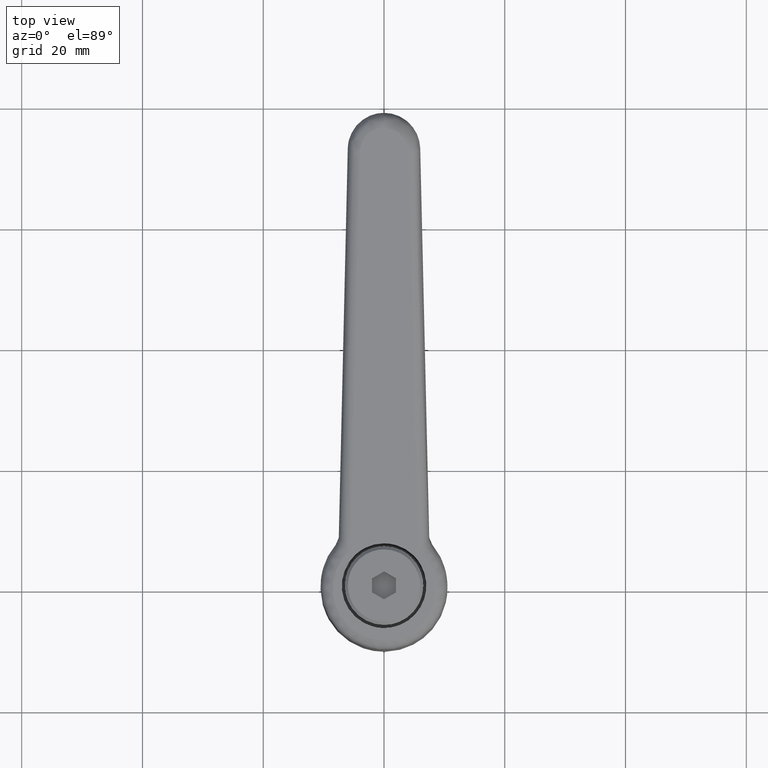
[diagram: clean part render]
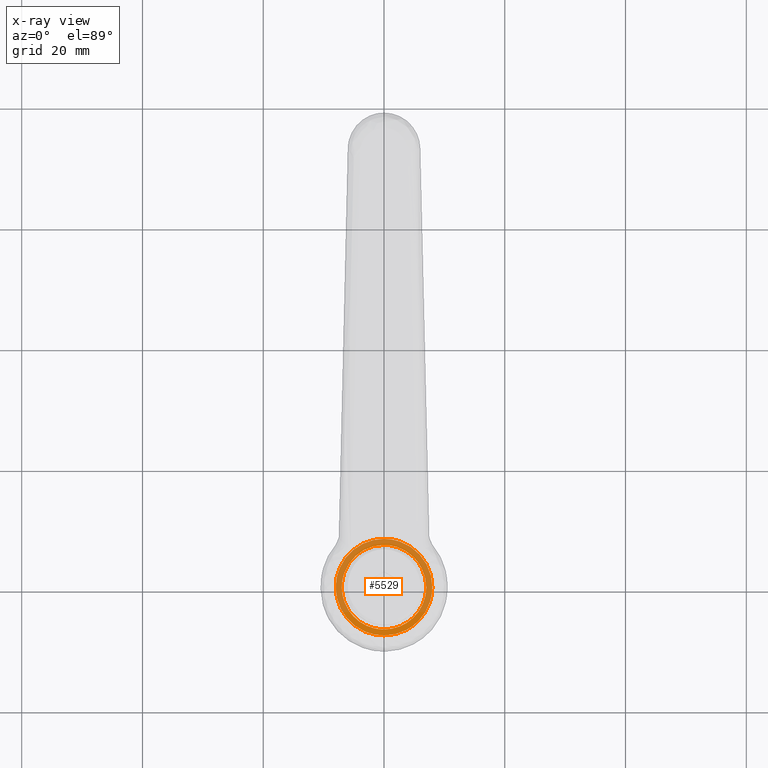
[diagram: x-ray — body ghosted, one internal face saturated and labeled with its STEP entity id]
A machine part, top view, then the same camera in x-ray: the body is ghosted and one INTERNAL B-rep face — a face not visible from any outside direction — is saturated and labeled: STEP entity #5529.
In plain terms, the highlighted face is a freeform B-spline surface patch.
Its self-contained STEP definition (entity closure, byte-faithful):
#1767=CARTESIAN_POINT('',(-8.0,0.0,12.000000000000220));
#1768=VERTEX_POINT('',#1767);
#1769=CARTESIAN_POINT('',(-5.579455831524071,-5.733207608983713,11.999999999999870));
#1770=VERTEX_POINT('',#1769);
#1771=CARTESIAN_POINT('',(-8.0,0.0,12.000000000000220));
#1772=CARTESIAN_POINT('',(-8.000038294050135,-0.499364924097891,12.000000000000210));
#1773=CARTESIAN_POINT('',(-7.896875407120144,-1.597986841997598,12.000000000000099));
#1774=CARTESIAN_POINT('',(-7.461797455335034,-3.006356144179406,12.000000000000060));
#1775=CARTESIAN_POINT('',(-6.705773392804059,-4.456239483874402,11.999999999999920));
#1776=CARTESIAN_POINT('',(-6.056747532358851,-5.268944074514073,11.999999999999931));
#1777=CARTESIAN_POINT('',(-5.579455831524071,-5.733207608983713,11.999999999999870));
#1778=B_SPLINE_CURVE_WITH_KNOTS('',3,(#1771,#1772,#1773,#1774,#1775,#1776,#1777),.UNSPECIFIED.,.F.,.U.,(4,1,1,1,4),(0.000000016648449,1.498112647784820,3.295840583785803,4.394459808361082,6.391949009087064),.UNSPECIFIED.);
#1779=EDGE_CURVE('',#1768,#1770,#1778,.T.);
#1846=CARTESIAN_POINT('',(5.404721806673198,-5.898218825887525,12.000000000001480));
#1847=VERTEX_POINT('',#1846);
#1853=CARTESIAN_POINT('',(8.0,0.0,12.000000000000220));
#1854=VERTEX_POINT('',#1853);
#1855=CARTESIAN_POINT('',(5.404721806673198,-5.898218825887525,12.000000000001480));
#1856=CARTESIAN_POINT('',(5.684874698571047,-5.641522836214929,12.000000000001419));
#1857=CARTESIAN_POINT('',(6.279932948827026,-5.012656526635885,12.000000000001290));
#1858=CARTESIAN_POINT('',(7.078106855831418,-3.835688766680744,12.000000000001039));
#1859=CARTESIAN_POINT('',(7.797585009293703,-2.141473003857376,12.000000000000680));
#1860=CARTESIAN_POINT('',(8.000365245525710,-0.794536024590619,12.000000000000391));
#1861=CARTESIAN_POINT('',(8.0,0.0,12.000000000000220));
#1862=B_SPLINE_CURVE_WITH_KNOTS('',3,(#1855,#1856,#1857,#1858,#1859,#1860,#1861),.UNSPECIFIED.,.F.,.U.,(4,1,1,1,4),(0.000000015297609,1.139925666537495,2.590752211359732,4.248810433934379,6.632297586359256),.UNSPECIFIED.);
#1863=EDGE_CURVE('',#1847,#1854,#1862,.T.);
#1865=CARTESIAN_POINT('',(-0.000000784380531,7.999999999999962,12.000000000000220));
#1866=VERTEX_POINT('',#1865);
#1867=CARTESIAN_POINT('',(8.0,0.0,12.000000000000220));
#1868=CARTESIAN_POINT('',(8.000456141399610,0.818188724077737,12.000000000000220));
#1869=CARTESIAN_POINT('',(7.792228387452179,2.159590581339938,12.000000000000171));
#1870=CARTESIAN_POINT('',(7.002001494480390,4.003306223004828,12.000000000000330));
#1871=CARTESIAN_POINT('',(6.055567153267292,5.312659877113576,11.999999999999909));
#1872=CARTESIAN_POINT('',(4.966948329707169,6.311376114383624,12.000000000000600));
#1873=CARTESIAN_POINT('',(3.875628690221512,7.040618302973636,11.999999999999851));
#1874=CARTESIAN_POINT('',(2.767025327110055,7.540178318879596,12.000000000000250));
#1875=CARTESIAN_POINT('',(1.439855467155971,7.907436487695333,12.000000000000419));
#1876=CARTESIAN_POINT('',(0.556326760398553,8.000094462314205,12.000000000000121));
#1877=CARTESIAN_POINT('',(-0.000000784380531,7.999999999999962,12.000000000000220));
#1878=B_SPLINE_CURVE_WITH_KNOTS('',3,(#1867,#1868,#1869,#1870,#1871,#1872,#1873,#1874,#1875,#1876,#1877),.UNSPECIFIED.,.F.,.U.,(4,1,1,1,1,1,1,1,4),(0.000000056841380,2.454377084693446,4.025192400525658,5.988730720664633,7.264956511762519,8.443083046219670,9.915719206550289,10.897483354120981,12.566449905094730),.UNSPECIFIED.);
#1879=EDGE_CURVE('',#1854,#1866,#1878,.T.);
#1881=CARTESIAN_POINT('',(-0.000000784380531,7.999999999999962,12.000000000000220));
#1882=CARTESIAN_POINT('',(-0.687249834865294,8.000223130202107,12.000000000000250));
#1883=CARTESIAN_POINT('',(-1.799769816326342,7.855673970960729,12.000000000000201));
#1884=CARTESIAN_POINT('',(-3.348666550052020,7.312188910984878,12.000000000000259));
#1885=CARTESIAN_POINT('',(-4.550336799997957,6.631461756013027,12.000000000000171));
#1886=CARTESIAN_POINT('',(-5.484507460835427,5.855080907492400,12.000000000000320));
#1887=CARTESIAN_POINT('',(-6.264996829003098,5.014917732457398,12.000000000000099));
#1888=CARTESIAN_POINT('',(-6.870201223765049,4.155595693938912,12.000000000000380));
#1889=CARTESIAN_POINT('',(-7.459888051053579,2.984156075543399,12.000000000000060));
#1890=CARTESIAN_POINT('',(-7.886903592256843,1.636218347117928,12.000000000000270));
#1891=CARTESIAN_POINT('',(-8.000086010149186,0.556325180494992,12.000000000000220));
#1892=CARTESIAN_POINT('',(-8.0,0.0,12.000000000000220));
#1893=B_SPLINE_CURVE_WITH_KNOTS('',3,(#1881,#1882,#1883,#1884,#1885,#1886,#1887,#1888,#1889,#1890,#1891,#1892),.UNSPECIFIED.,.F.,.U.,(4,1,1,1,1,1,1,1,1,4),(0.000000057114159,2.061679547334760,3.337963853514612,4.908785850372819,6.185064274311347,6.970438705159192,8.344900218698514,9.326660070587494,10.897482587484310,12.566449020909520),.UNSPECIFIED.);
#1894=EDGE_CURVE('',#1866,#1768,#1893,.T.);
#1913=CARTESIAN_POINT('',(0.000000784380527,-7.999999999999963,12.000000000000220));
#1914=VERTEX_POINT('',#1913);
#1915=CARTESIAN_POINT('',(-5.579455831524071,-5.733207608983713,11.999999999999870));
#1916=CARTESIAN_POINT('',(-5.233789167164884,-6.069672515291050,11.999999999999890));
#1917=CARTESIAN_POINT('',(-4.606723237782642,-6.578044569442261,11.999999999999950));
#1918=CARTESIAN_POINT('',(-3.411914369650871,-7.279209136006876,12.000000000000011));
#1919=CARTESIAN_POINT('',(-1.929438773559462,-7.840209349704623,12.000000000000130));
#1920=CARTESIAN_POINT('',(-0.675354617959714,-8.000200205647305,12.000000000000130));
#1921=CARTESIAN_POINT('',(0.000000784380527,-7.999999999999963,12.000000000000220));
#1922=B_SPLINE_CURVE_WITH_KNOTS('',3,(#1915,#1916,#1917,#1918,#1919,#1920,#1921),.UNSPECIFIED.,.F.,.U.,(4,1,1,1,4),(0.000000017543146,1.447147462044410,2.411917852202182,4.148487986417696,6.174501155075965),.UNSPECIFIED.);
#1923=EDGE_CURVE('',#1770,#1914,#1922,.T.);
#1925=CARTESIAN_POINT('',(0.000000784380527,-7.999999999999963,12.000000000000220));
#1926=CARTESIAN_POINT('',(0.649062966525574,-8.000169912699489,12.000000000000380));
#1927=CARTESIAN_POINT('',(1.730711873106272,-7.867590696721737,12.000000000000631));
#1928=CARTESIAN_POINT('',(3.112046318767362,-7.402860393266307,12.000000000000901));
#1929=CARTESIAN_POINT('',(4.296655559224701,-6.793351141034488,12.000000000001281));
#1930=CARTESIAN_POINT('',(5.017384659453767,-6.253238380749359,12.000000000001330));
#1931=CARTESIAN_POINT('',(5.404721806673198,-5.898218825887525,12.000000000001480));
#1932=B_SPLINE_CURVE_WITH_KNOTS('',3,(#1925,#1926,#1927,#1928,#1929,#1930,#1931),.UNSPECIFIED.,.F.,.U.,(4,1,1,1,4),(0.000000017500638,1.947144902354734,3.245224293607119,4.357892313899134,5.934151975565113),.UNSPECIFIED.);
#1933=EDGE_CURVE('',#1914,#1847,#1932,.T.);
#1988=CARTESIAN_POINT('',(0.000001716535586,-6.999999999999790,12.000000000000220));
#1989=VERTEX_POINT('',#1988);
#1990=CARTESIAN_POINT('',(5.016557112997631,-4.882024245913588,12.000000000000220));
#1991=VERTEX_POINT('',#1990);
#1992=CARTESIAN_POINT('',(0.000001716535586,-6.999999999999790,12.000000000000220));
#1993=CARTESIAN_POINT('',(0.495205732281507,-7.000055646549098,12.000000000000201));
#1994=CARTESIAN_POINT('',(1.573020424618916,-6.885246517353270,12.000000000000250));
#1995=CARTESIAN_POINT('',(2.875145601748403,-6.428946882155213,12.000000000000220));
#1996=CARTESIAN_POINT('',(4.062592254420448,-5.742062210159425,12.000000000000201));
#1997=CARTESIAN_POINT('',(4.671234474791709,-5.236974720394990,12.000000000000270));
#1998=CARTESIAN_POINT('',(5.016557112997631,-4.882024245913588,12.000000000000220));
#1999=B_SPLINE_CURVE_WITH_KNOTS('',3,(#1992,#1993,#1994,#1995,#1996,#1997,#1998),.UNSPECIFIED.,.F.,.U.,(4,1,1,1,4),(0.000000022131416,1.485629008453379,3.233422516662242,4.107324955489085,5.592953941825610),.UNSPECIFIED.);
#2000=EDGE_CURVE('',#1989,#1991,#1999,.T.);
#2002=CARTESIAN_POINT('',(-7.0,0.0,12.000000000000220));
#2003=VERTEX_POINT('',#2002);
#2004=CARTESIAN_POINT('',(-7.0,0.0,12.000000000000220));
#2005=CARTESIAN_POINT('',(-7.000356646552611,-0.715908951598757,12.000000000000250));
#2006=CARTESIAN_POINT('',(-6.827127552720273,-1.832401271477167,12.000000000000210));
#2007=CARTESIAN_POINT('',(-6.222126218245994,-3.292790395803473,12.000000000000220));
#2008=CARTESIAN_POINT('',(-5.469037366553727,-4.450478021033949,12.000000000000250));
#2009=CARTESIAN_POINT('',(-4.511581681128077,-5.407898300501994,12.000000000000220));
#2010=CARTESIAN_POINT('',(-3.298499024415398,-6.229338011508722,12.000000000000201));
#2011=CARTESIAN_POINT('',(-1.832508498128419,-6.836539418168641,12.000000000000140));
#2012=CARTESIAN_POINT('',(-0.629970718892048,-7.000215488683311,12.000000000000441));
#2013=CARTESIAN_POINT('',(0.000001716535586,-6.999999999999790,12.000000000000220));
#2014=B_SPLINE_CURVE_WITH_KNOTS('',3,(#2004,#2005,#2006,#2007,#2008,#2009,#2010,#2011,#2012,#2013),.UNSPECIFIED.,.F.,.U.,(4,1,1,1,1,1,1,4),(0.000000078865838,2.147584104591562,3.350236767929047,4.724715472764449,6.270929540498358,7.387685991383012,9.105780416524826,10.995644247601950),.UNSPECIFIED.);
#2015=EDGE_CURVE('',#2003,#1989,#2014,.T.);
#2017=CARTESIAN_POINT('',(-0.000001716535529,6.999999999999790,12.000000000000220));
#2018=VERTEX_POINT('',#2017);
#2019=CARTESIAN_POINT('',(-0.000001716535529,6.999999999999790,12.000000000000220));
#2020=CARTESIAN_POINT('',(-0.400878049195485,7.000027802351900,12.000000000000220));
#2021=CARTESIAN_POINT('',(-1.231261538560243,6.928477801925277,12.000000000000229));
#2022=CARTESIAN_POINT('',(-2.563821394191982,6.568614672134449,12.000000000000210));
#2023=CARTESIAN_POINT('',(-3.719007540035608,5.978213277286157,12.000000000000250));
#2024=CARTESIAN_POINT('',(-4.719213030182346,5.207349476943970,12.000000000000171));
#2025=CARTESIAN_POINT('',(-5.571428640129068,4.312367397325152,12.000000000000171));
#2026=CARTESIAN_POINT('',(-6.264998285773221,3.217093074260711,12.000000000000320));
#2027=CARTESIAN_POINT('',(-6.842648569021477,1.746521255399813,12.000000000000210));
#2028=CARTESIAN_POINT('',(-7.000302973712993,0.687267401977003,12.000000000000140));
#2029=CARTESIAN_POINT('',(-7.0,0.0,12.000000000000220));
#2030=B_SPLINE_CURVE_WITH_KNOTS('',3,(#2019,#2020,#2021,#2022,#2023,#2024,#2025,#2026,#2027,#2028,#2029),.UNSPECIFIED.,.F.,.U.,(4,1,1,1,1,1,1,1,4),(0.000000079469359,1.202634062052759,2.491199329014197,4.123373646597813,5.068313178614756,6.270928435942497,7.817207888681754,8.933966060897767,10.995642312654150),.UNSPECIFIED.);
#2031=EDGE_CURVE('',#2018,#2003,#2030,.T.);
#2033=CARTESIAN_POINT('',(5.160940994417302,4.729131216949925,12.000000000000220));
#2034=VERTEX_POINT('',#2033);
#2035=CARTESIAN_POINT('',(5.160940994417302,4.729131216949925,12.000000000000220));
#2036=CARTESIAN_POINT('',(4.773064751767450,5.152647591766010,12.000000000000229));
#2037=CARTESIAN_POINT('',(4.054478023148488,5.764937582371358,12.000000000000220));
#2038=CARTESIAN_POINT('',(2.913687929517907,6.395815834181065,12.000000000000240));
#2039=CARTESIAN_POINT('',(1.632054441468114,6.863394257140012,12.000000000000229));
#2040=CARTESIAN_POINT('',(0.634749479353782,7.000191089458419,12.000000000000201));
#2041=CARTESIAN_POINT('',(-0.000001716535529,6.999999999999790,12.000000000000220));
#2042=B_SPLINE_CURVE_WITH_KNOTS('',3,(#2035,#2036,#2037,#2038,#2039,#2040,#2041),.UNSPECIFIED.,.F.,.U.,(4,1,1,1,4),(0.000000021859086,1.722843780858989,2.810965315366169,3.899061097958895,5.803261801770796),.UNSPECIFIED.);
#2043=EDGE_CURVE('',#2034,#2018,#2042,.T.);
#2108=CARTESIAN_POINT('',(7.0,0.0,12.000000000000220));
#2109=VERTEX_POINT('',#2108);
#2110=CARTESIAN_POINT('',(5.016557112997631,-4.882024245913588,12.000000000000220));
#2111=CARTESIAN_POINT('',(5.369879791406532,-4.519100497300620,12.000000000000210));
#2112=CARTESIAN_POINT('',(5.875134147029889,-3.872197007351234,12.000000000000220));
#2113=CARTESIAN_POINT('',(6.483872060894125,-2.726642088063231,12.000000000000220));
#2114=CARTESIAN_POINT('',(6.892641534005442,-1.491327006238457,12.000000000000281));
#2115=CARTESIAN_POINT('',(7.000087503605501,-0.506506011544517,12.000000000000099));
#2116=CARTESIAN_POINT('',(7.0,0.0,12.000000000000220));
#2117=B_SPLINE_CURVE_WITH_KNOTS('',3,(#2110,#2111,#2112,#2113,#2114,#2115,#2116),.UNSPECIFIED.,.F.,.U.,(4,1,1,1,4),(0.000000022185707,1.519506686412809,2.448107800885000,3.883181356307488,5.402688020533802),.UNSPECIFIED.);
#2118=EDGE_CURVE('',#1991,#2109,#2117,.T.);
#2150=CARTESIAN_POINT('',(7.0,0.0,12.000000000000220));
#2151=CARTESIAN_POINT('',(7.000066886449453,0.459745891506920,12.000000000000229));
#2152=CARTESIAN_POINT('',(6.925109131718633,1.216934859827492,12.000000000000210));
#2153=CARTESIAN_POINT('',(6.617714592037315,2.368970828638843,12.000000000000229));
#2154=CARTESIAN_POINT('',(6.100439185393626,3.535979595544835,12.000000000000220));
#2155=CARTESIAN_POINT('',(5.526435847253460,4.330431156863779,12.000000000000220));
#2156=CARTESIAN_POINT('',(5.160940994417302,4.729131216949925,12.000000000000220));
#2157=B_SPLINE_CURVE_WITH_KNOTS('',3,(#2150,#2151,#2152,#2153,#2154,#2155,#2156),.UNSPECIFIED.,.F.,.U.,(4,1,1,1,4),(0.000000021363902,1.379227602509018,2.271668441718441,3.569763505362448,5.192383497819538),.UNSPECIFIED.);
#2158=EDGE_CURVE('',#2109,#2034,#2157,.T.);
#5508=CARTESIAN_POINT('',(-8.799199968988896,8.799199968988853,12.000000000000201));
#5509=CARTESIAN_POINT('',(8.799200398142338,8.799199968988853,12.000000000000201));
#5510=CARTESIAN_POINT('',(-8.799199968988896,-8.799200398142297,12.000000000000201));
#5511=CARTESIAN_POINT('',(8.799200398142338,-8.799200398142297,12.000000000000201));
#5512=B_SPLINE_SURFACE_WITH_KNOTS('',1,1,((#5508,#5510),(#5509,#5511)),.UNSPECIFIED.,.F.,.F.,.U.,(2,2),(2,2),(0.0,17.598400367131230),(0.0,17.598400367131148),.UNSPECIFIED.);
#5513=ORIENTED_EDGE('',*,*,#1894,.F.);
#5514=ORIENTED_EDGE('',*,*,#1879,.F.);
#5515=ORIENTED_EDGE('',*,*,#1863,.F.);
#5516=ORIENTED_EDGE('',*,*,#1933,.F.);
#5517=ORIENTED_EDGE('',*,*,#1923,.F.);
#5518=ORIENTED_EDGE('',*,*,#1779,.F.);
#5519=EDGE_LOOP('',(#5513,#5514,#5515,#5516,#5517,#5518));
#5520=FACE_OUTER_BOUND('',#5519,.T.);
#5521=ORIENTED_EDGE('',*,*,#2015,.T.);
#5522=ORIENTED_EDGE('',*,*,#2000,.T.);
#5523=ORIENTED_EDGE('',*,*,#2118,.T.);
#5524=ORIENTED_EDGE('',*,*,#2158,.T.);
#5525=ORIENTED_EDGE('',*,*,#2043,.T.);
#5526=ORIENTED_EDGE('',*,*,#2031,.T.);
#5527=EDGE_LOOP('',(#5521,#5522,#5523,#5524,#5525,#5526));
#5528=FACE_BOUND('',#5527,.T.);
#5529=ADVANCED_FACE('',(#5520,#5528),#5512,.T.);